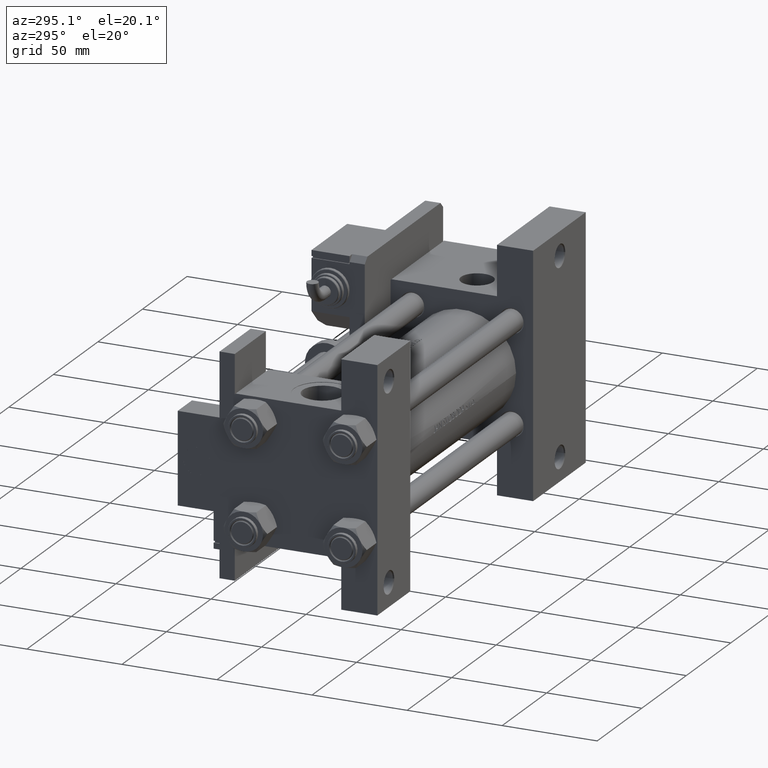
[diagram: clean part render]
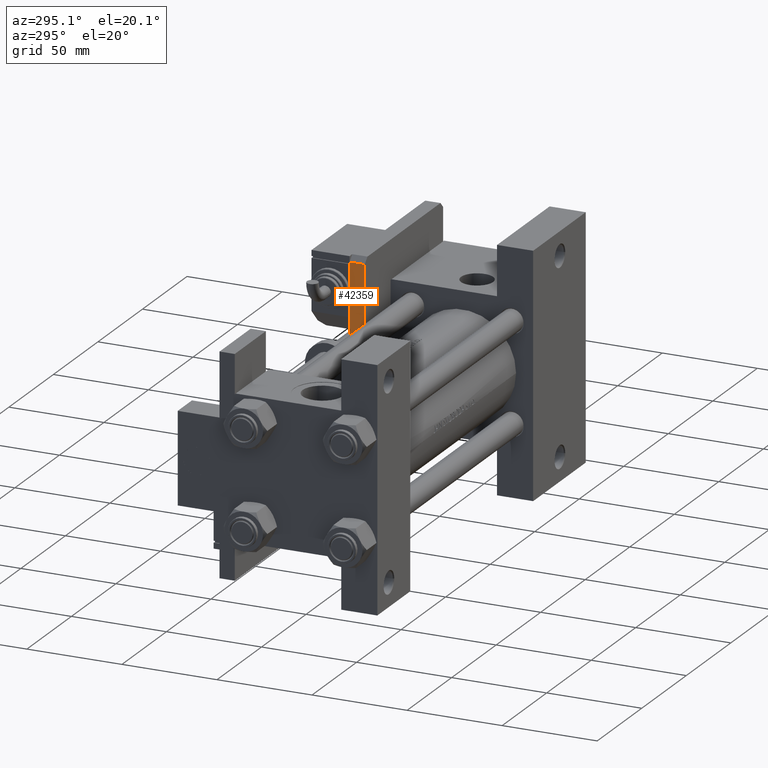
[diagram: same view with one face highlighted and labeled with its STEP entity id]
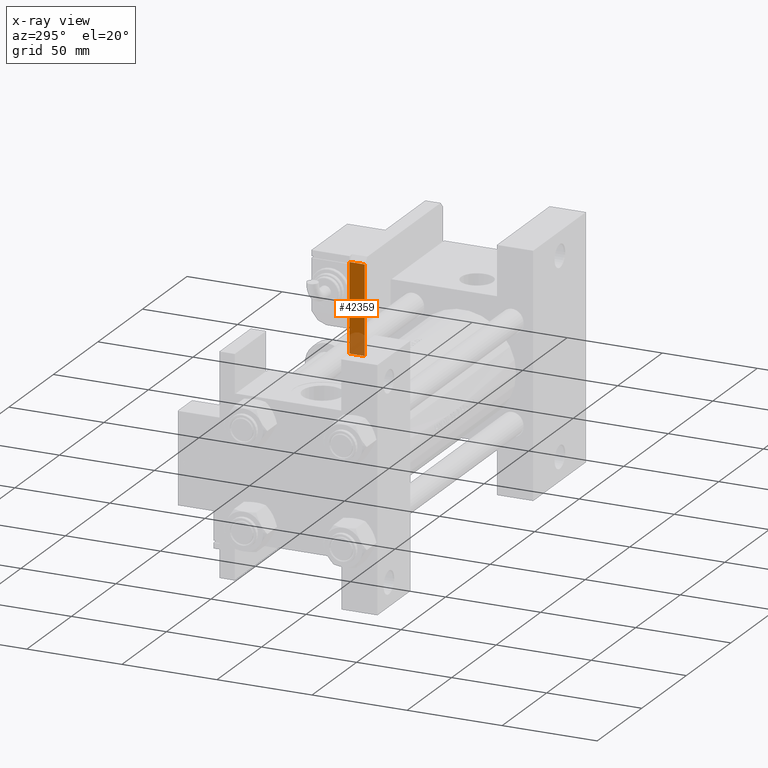
[diagram: x-ray of the same camera — body ghosted, the highlighted face saturated]
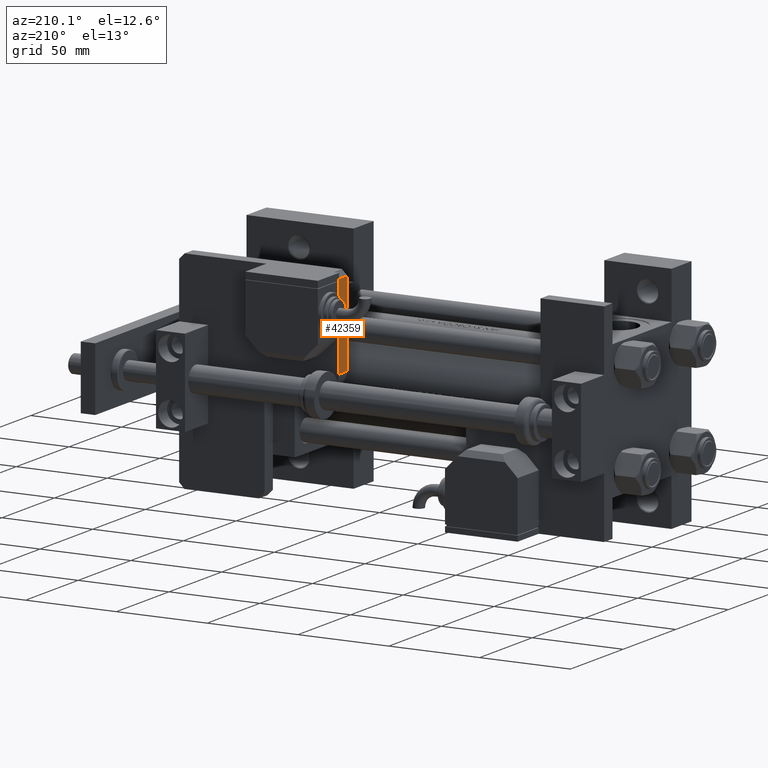
[diagram: same view with one face highlighted and labeled with its STEP entity id]
A machine part, auxiliary view. The second image highlights one B-rep face of the part: STEP entity #42359.
The next image is the same camera in x-ray: the body ghosted, the highlighted face saturated — about 23% of this face is hidden behind the body in this view.
A second angle (auxiliary view) of the same face is appended — the face is thin or edge-on in the first view.
In plain terms, the highlighted planar face has unit normal (1, 0, 0).
Its self-contained STEP definition (entity closure, byte-faithful):
#552 = LINE ( 'NONE', #52840, #20787 ) ;
#895 = EDGE_CURVE ( 'NONE', #22104, #33712, #19847, .T. ) ;
#2736 = DIRECTION ( 'NONE',  ( 0.000000000000000000, -0.000000000000000000, -1.000000000000000000 ) ) ;
#3002 = CARTESIAN_POINT ( 'NONE',  ( 56.99999999999999289, 88.00000000000000000, 8.000000000000000000 ) ) ;
#4330 = DIRECTION ( 'NONE',  ( 0.000000000000000000, 0.000000000000000000, -1.000000000000000000 ) ) ;
#4942 = AXIS2_PLACEMENT_3D ( 'NONE', #3002, #15681, #2736 ) ;
#5087 = EDGE_CURVE ( 'NONE', #25969, #33712, #48937, .T. ) ;
#7940 = DIRECTION ( 'NONE',  ( -1.000000000000000000, 0.000000000000000000, 0.000000000000000000 ) ) ;
#7968 = DIRECTION ( 'NONE',  ( -1.000000000000000000, 0.000000000000000000, 0.000000000000000000 ) ) ;
#15681 = DIRECTION ( 'NONE',  ( 0.000000000000000000, -1.000000000000000000, 0.000000000000000000 ) ) ;
#19733 = PLANE ( 'NONE',  #4942 ) ;
#19847 = LINE ( 'NONE', #36258, #38192 ) ;
#20628 = LINE ( 'NONE', #32205, #24888 ) ;
#20787 = VECTOR ( 'NONE', #4330, 1000.000000000000000 ) ;
#21223 = VERTEX_POINT ( 'NONE', #30534 ) ;
#22104 = VERTEX_POINT ( 'NONE', #43385 ) ;
#24888 = VECTOR ( 'NONE', #7940, 1000.000000000000000 ) ;
#25804 = EDGE_CURVE ( 'NONE', #25969, #21223, #552, .T. ) ;
#25969 = VERTEX_POINT ( 'NONE', #39829 ) ;
#26831 = CARTESIAN_POINT ( 'NONE',  ( 3.000000000000002665, 88.00000000000000000, 8.000000000000000000 ) ) ;
#28223 = EDGE_LOOP ( 'NONE', ( #47714, #37917, #29410, #31564 ) ) ;
#29410 = ORIENTED_EDGE ( 'NONE', *, *, #5087, .F. ) ;
#30534 = CARTESIAN_POINT ( 'NONE',  ( 49.49999999999999289, 88.00000000000000000, 0.000000000000000000 ) ) ;
#31564 = ORIENTED_EDGE ( 'NONE', *, *, #25804, .T. ) ;
#32205 = CARTESIAN_POINT ( 'NONE',  ( 56.99999999999999289, 88.00000000000000000, 0.000000000000000000 ) ) ;
#33712 = VERTEX_POINT ( 'NONE', #26831 ) ;
#35723 = CARTESIAN_POINT ( 'NONE',  ( 56.99999999999999289, 88.00000000000000000, 8.000000000000000000 ) ) ;
#36258 = CARTESIAN_POINT ( 'NONE',  ( 3.000000000000002665, 88.00000000000000000, 8.000000000000000000 ) ) ;
#37917 = ORIENTED_EDGE ( 'NONE', *, *, #895, .T. ) ;
#38192 = VECTOR ( 'NONE', #52699, 1000.000000000000000 ) ;
#39829 = CARTESIAN_POINT ( 'NONE',  ( 49.49999999999999289, 88.00000000000000000, 8.000000000000000000 ) ) ;
#42359 = ADVANCED_FACE ( 'NONE', ( #52593 ), #19733, .F. ) ;
#43385 = CARTESIAN_POINT ( 'NONE',  ( 3.000000000000002665, 88.00000000000000000, 0.000000000000000000 ) ) ;
#45477 = EDGE_CURVE ( 'NONE', #21223, #22104, #20628, .T. ) ;
#46133 = VECTOR ( 'NONE', #7968, 1000.000000000000000 ) ;
#47714 = ORIENTED_EDGE ( 'NONE', *, *, #45477, .T. ) ;
#48937 = LINE ( 'NONE', #35723, #46133 ) ;
#52593 = FACE_OUTER_BOUND ( 'NONE', #28223, .T. ) ;
#52699 = DIRECTION ( 'NONE',  ( 0.000000000000000000, 0.000000000000000000, 1.000000000000000000 ) ) ;
#52840 = CARTESIAN_POINT ( 'NONE',  ( 49.49999999999999289, 88.00000000000000000, 8.000000000000000000 ) ) ;